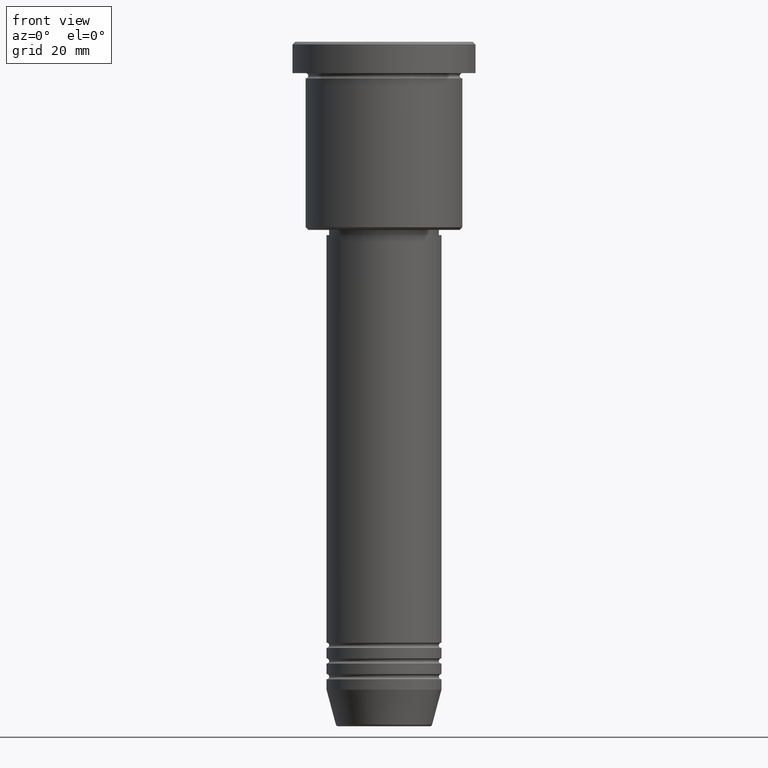
[diagram: clean part render]
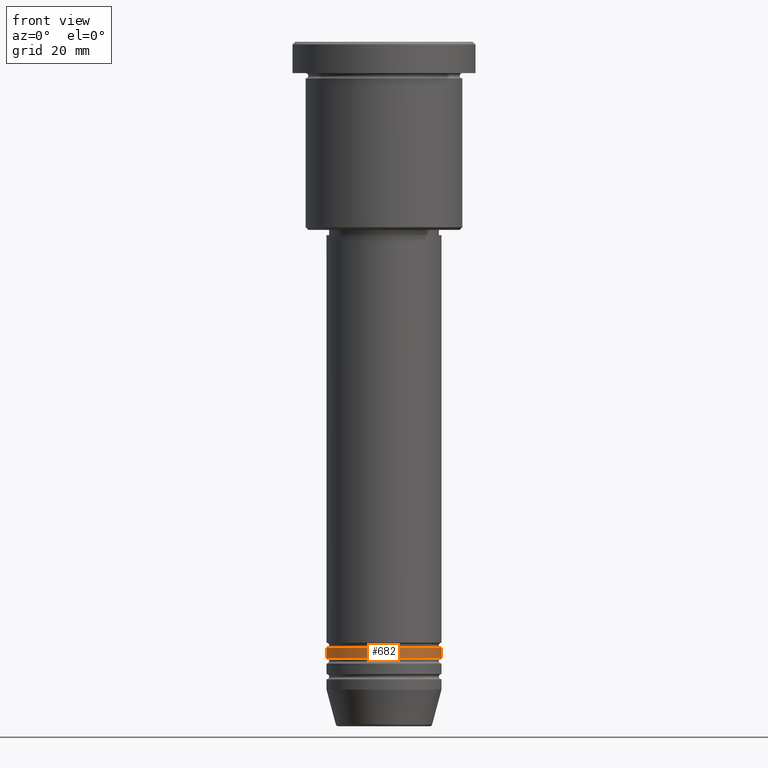
[diagram: same view with one face highlighted and labeled with its STEP entity id]
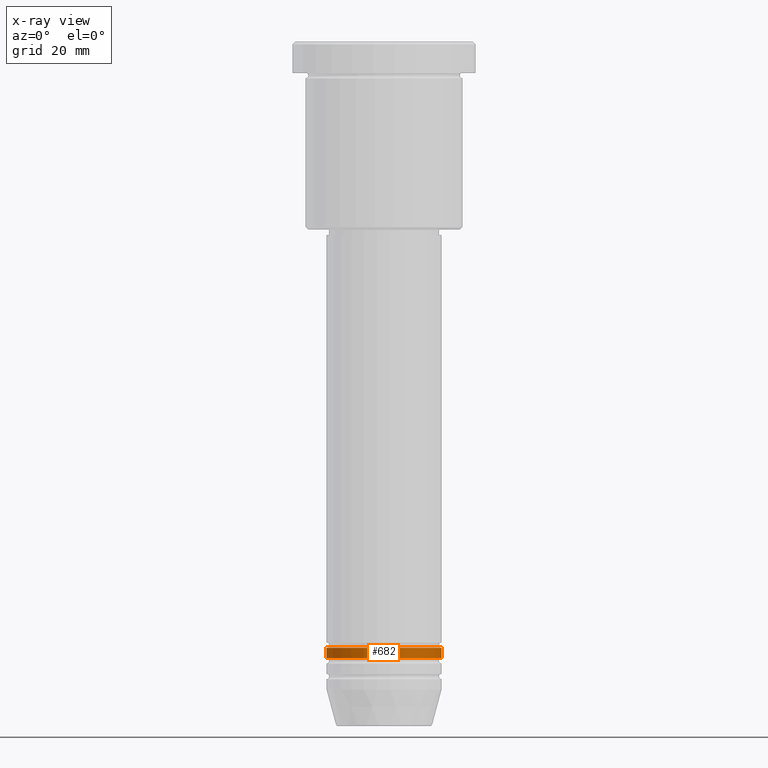
[diagram: x-ray of the same camera — body ghosted, the highlighted face saturated]
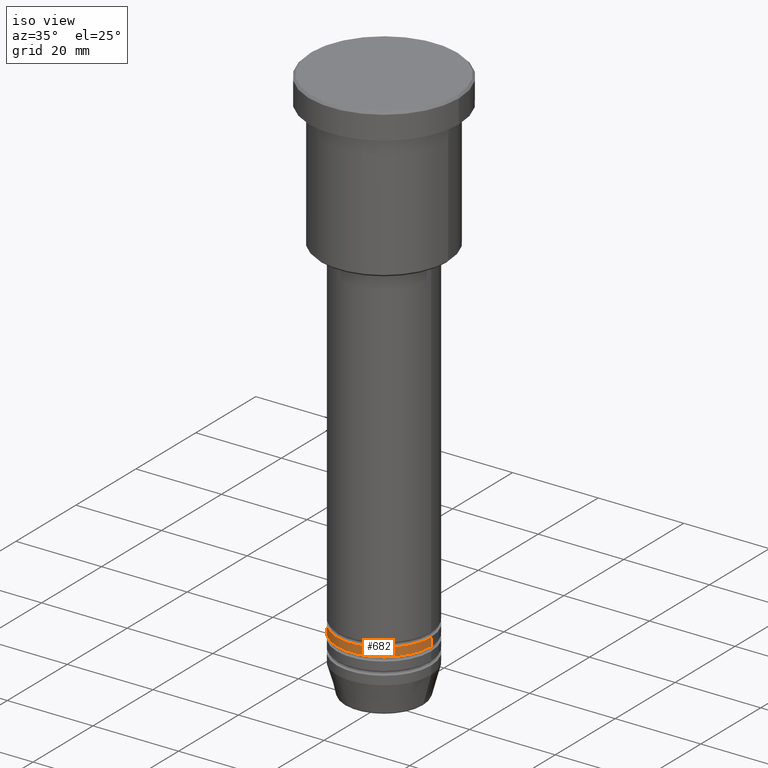
[diagram: same view with one face highlighted and labeled with its STEP entity id]
A machine part, front view. The second image highlights one B-rep face of the part: STEP entity #682.
The next image is the same camera in x-ray: the body ghosted, the highlighted face saturated — about 0% of this face is hidden behind the body in this view.
A second angle (iso view) of the same face is appended — the face is thin or edge-on in the first view.
In plain terms, the highlighted cylindrical surface (partial cylindrical patch) has radius 11 mm, axis along (-0, -0, 1).
Its self-contained STEP definition (entity closure, byte-faithful):
#11 = DIRECTION ( 'NONE',  ( -0.000000000000000000, -0.000000000000000000, 1.000000000000000000 ) ) ;
#72 = AXIS2_PLACEMENT_3D ( 'NONE', #976, #528, #996 ) ;
#95 = CARTESIAN_POINT ( 'NONE',  ( -11.00000000000000000, 1.347111479062088405E-15, -115.9999999999999716 ) ) ;
#130 = VERTEX_POINT ( 'NONE', #364 ) ;
#151 = ORIENTED_EDGE ( 'NONE', *, *, #794, .F. ) ;
#235 = ORIENTED_EDGE ( 'NONE', *, *, #494, .T. ) ;
#241 = FACE_OUTER_BOUND ( 'NONE', #604, .T. ) ;
#253 = CARTESIAN_POINT ( 'NONE',  ( -11.00000000000000000, 1.347111479062088405E-15, -117.9999999999999716 ) ) ;
#289 = VERTEX_POINT ( 'NONE', #253 ) ;
#295 = DIRECTION ( 'NONE',  ( 1.000000000000000000, 0.000000000000000000, 0.000000000000000000 ) ) ;
#364 = CARTESIAN_POINT ( 'NONE',  ( 11.00000000000000000, 0.000000000000000000, -115.9999999999999716 ) ) ;
#372 = EDGE_CURVE ( 'NONE', #289, #1101, #922, .T. ) ;
#484 = CIRCLE ( 'NONE', #1071, 11.00000000000000000 ) ;
#487 = CARTESIAN_POINT ( 'NONE',  ( 11.00000000000000000, 0.000000000000000000, 0.000000000000000000 ) ) ;
#494 = EDGE_CURVE ( 'NONE', #1101, #130, #566, .T. ) ;
#528 = DIRECTION ( 'NONE',  ( -0.000000000000000000, -0.000000000000000000, 1.000000000000000000 ) ) ;
#566 = LINE ( 'NONE', #487, #636 ) ;
#587 = CYLINDRICAL_SURFACE ( 'NONE', #72, 11.00000000000000000 ) ;
#597 = LINE ( 'NONE', #884, #973 ) ;
#604 = EDGE_LOOP ( 'NONE', ( #960, #1076, #235, #151 ) ) ;
#636 = VECTOR ( 'NONE', #956, 1000.000000000000000 ) ;
#648 = CARTESIAN_POINT ( 'NONE',  ( 0.000000000000000000, 0.000000000000000000, -115.9999999999999716 ) ) ;
#682 = ADVANCED_FACE ( 'NONE', ( #241 ), #587, .T. ) ;
#714 = CARTESIAN_POINT ( 'NONE',  ( 0.000000000000000000, 0.000000000000000000, -117.9999999999999716 ) ) ;
#724 = EDGE_CURVE ( 'NONE', #289, #849, #597, .T. ) ;
#794 = EDGE_CURVE ( 'NONE', #849, #130, #484, .T. ) ;
#803 = CARTESIAN_POINT ( 'NONE',  ( 11.00000000000000000, 0.000000000000000000, -117.9999999999999716 ) ) ;
#812 = DIRECTION ( 'NONE',  ( -0.000000000000000000, -0.000000000000000000, 1.000000000000000000 ) ) ;
#819 = AXIS2_PLACEMENT_3D ( 'NONE', #714, #812, #1090 ) ;
#849 = VERTEX_POINT ( 'NONE', #95 ) ;
#884 = CARTESIAN_POINT ( 'NONE',  ( -11.00000000000000000, 1.347111479062088405E-15, 0.000000000000000000 ) ) ;
#922 = CIRCLE ( 'NONE', #819, 11.00000000000000000 ) ;
#956 = DIRECTION ( 'NONE',  ( -0.000000000000000000, -0.000000000000000000, 1.000000000000000000 ) ) ;
#960 = ORIENTED_EDGE ( 'NONE', *, *, #724, .F. ) ;
#973 = VECTOR ( 'NONE', #1092, 1000.000000000000000 ) ;
#976 = CARTESIAN_POINT ( 'NONE',  ( 0.000000000000000000, 0.000000000000000000, 0.000000000000000000 ) ) ;
#996 = DIRECTION ( 'NONE',  ( 1.000000000000000000, 0.000000000000000000, 0.000000000000000000 ) ) ;
#1071 = AXIS2_PLACEMENT_3D ( 'NONE', #648, #11, #295 ) ;
#1076 = ORIENTED_EDGE ( 'NONE', *, *, #372, .T. ) ;
#1090 = DIRECTION ( 'NONE',  ( 1.000000000000000000, 0.000000000000000000, 0.000000000000000000 ) ) ;
#1092 = DIRECTION ( 'NONE',  ( -0.000000000000000000, -0.000000000000000000, 1.000000000000000000 ) ) ;
#1101 = VERTEX_POINT ( 'NONE', #803 ) ;